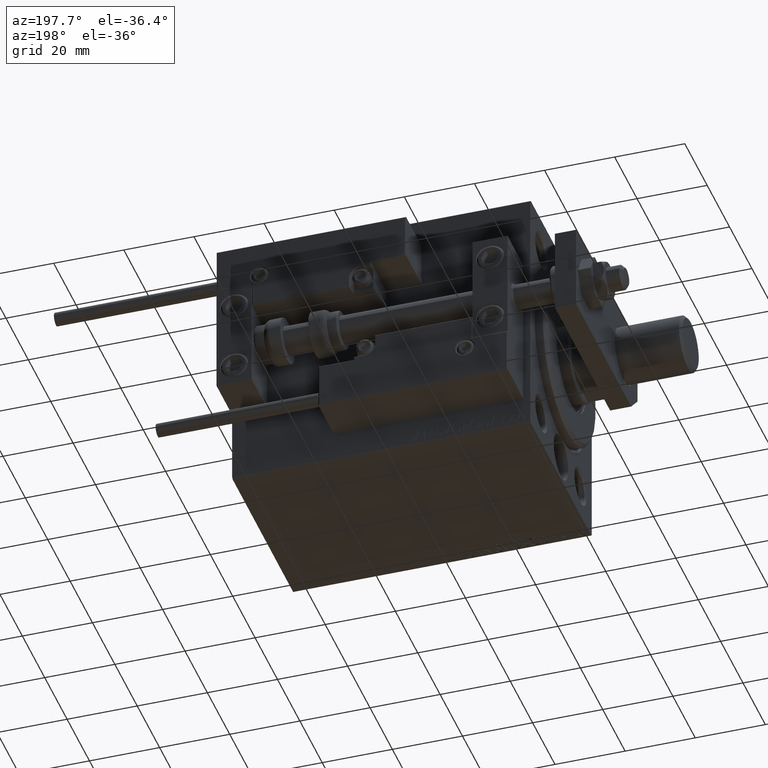
[diagram: clean part render]
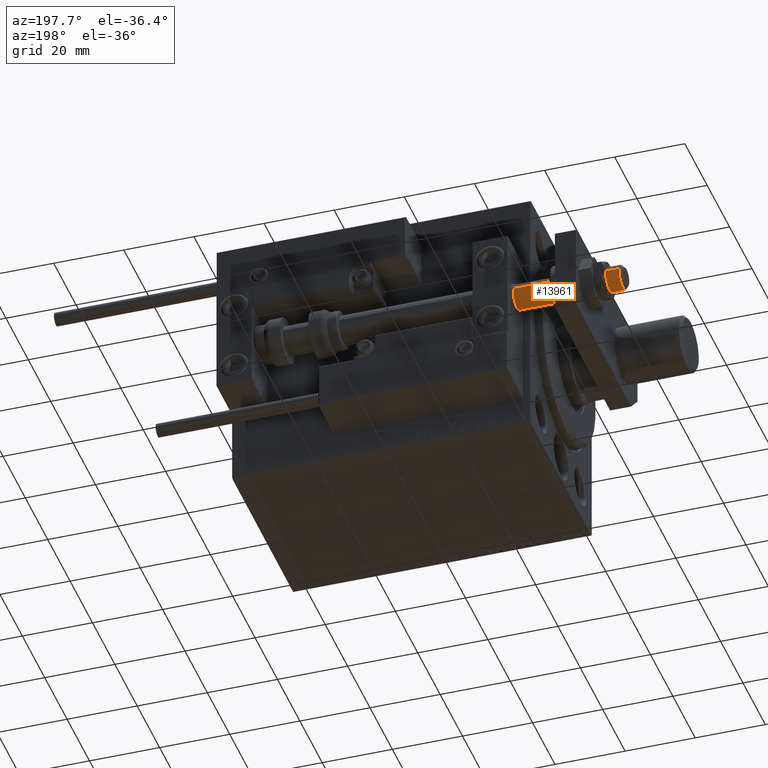
[diagram: same view with one face highlighted and labeled with its STEP entity id]
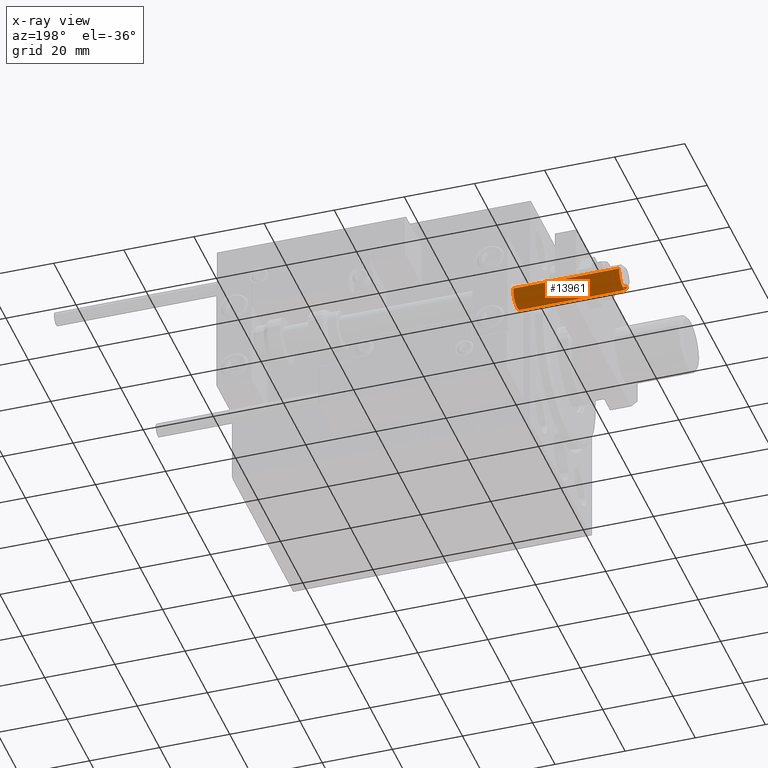
[diagram: x-ray of the same camera — body ghosted, the highlighted face saturated]
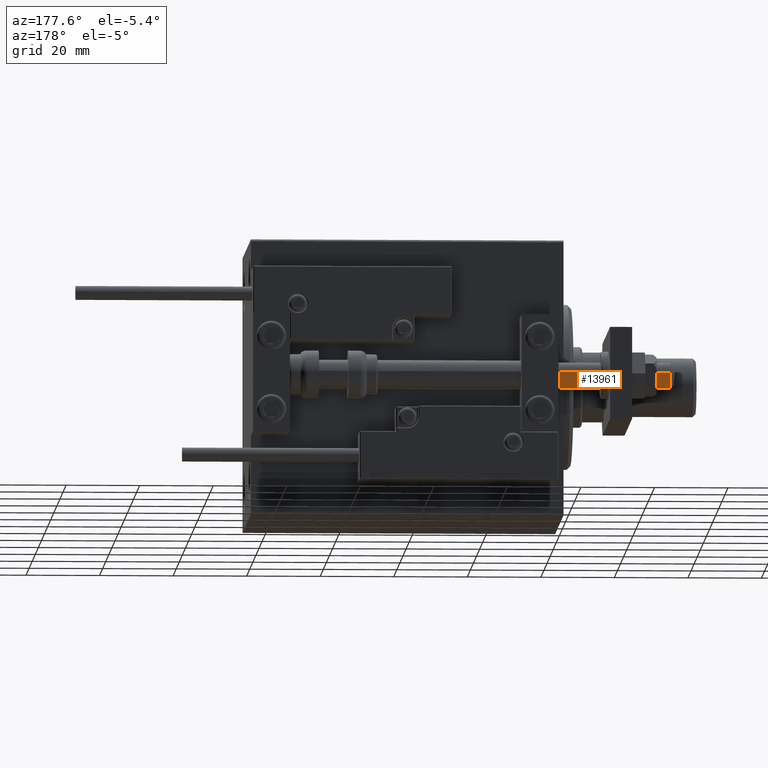
[diagram: same view with one face highlighted and labeled with its STEP entity id]
A machine part, auxiliary view. The second image highlights one B-rep face of the part: STEP entity #13961.
The next image is the same camera in x-ray: the body ghosted, the highlighted face saturated — about 0% of this face is hidden behind the body in this view.
A second angle (auxiliary view) of the same face is appended — the face is thin or edge-on in the first view.
In plain terms, the highlighted cylindrical surface (edge-blend (fillet) strip) has radius 3.5 mm, axis along (1, 0, 0).
Its self-contained STEP definition (entity closure, byte-faithful):
#848 = ORIENTED_EDGE ( 'NONE', *, *, #27734, .T. ) ;
#985 = DIRECTION ( 'NONE',  ( 0.000000000000000000, 0.000000000000000000, 1.000000000000000000 ) ) ;
#1695 = DIRECTION ( 'NONE',  ( -0.000000000000000000, -0.000000000000000000, 1.000000000000000000 ) ) ;
#1806 = VECTOR ( 'NONE', #7679, 1000.000000000000000 ) ;
#3412 = AXIS2_PLACEMENT_3D ( 'NONE', #30583, #27186, #7380 ) ;
#4672 = VERTEX_POINT ( 'NONE', #11551 ) ;
#5415 = CARTESIAN_POINT ( 'NONE',  ( 0.000000000000000000, 0.000000000000000000, -28.69999999999998863 ) ) ;
#5600 = CYLINDRICAL_SURFACE ( 'NONE', #16596, 3.500000000000000000 ) ;
#6714 = CIRCLE ( 'NONE', #3412, 3.500000000000000000 ) ;
#6781 = VERTEX_POINT ( 'NONE', #7955 ) ;
#7380 = DIRECTION ( 'NONE',  ( 1.000000000000000000, 0.000000000000000000, 0.000000000000000000 ) ) ;
#7679 = DIRECTION ( 'NONE',  ( -0.000000000000000000, -0.000000000000000000, 1.000000000000000000 ) ) ;
#7955 = CARTESIAN_POINT ( 'NONE',  ( -3.500000000000000000, 4.286263797015736595E-16, 1.500000000000025535 ) ) ;
#9320 = CIRCLE ( 'NONE', #50063, 3.500000000000000000 ) ;
#9523 = FACE_OUTER_BOUND ( 'NONE', #25011, .T. ) ;
#11551 = CARTESIAN_POINT ( 'NONE',  ( 3.500000000000000000, 0.000000000000000000, 1.500000000000025535 ) ) ;
#13961 = ADVANCED_FACE ( 'NONE', ( #9523 ), #5600, .T. ) ;
#15333 = VECTOR ( 'NONE', #37742, 1000.000000000000000 ) ;
#16441 = VERTEX_POINT ( 'NONE', #24069 ) ;
#16596 = AXIS2_PLACEMENT_3D ( 'NONE', #21503, #1695, #17615 ) ;
#17615 = DIRECTION ( 'NONE',  ( 1.000000000000000000, 0.000000000000000000, 0.000000000000000000 ) ) ;
#19654 = ORIENTED_EDGE ( 'NONE', *, *, #39942, .F. ) ;
#21503 = CARTESIAN_POINT ( 'NONE',  ( 0.000000000000000000, 0.000000000000000000, -29.69999999999999929 ) ) ;
#23449 = EDGE_CURVE ( 'NONE', #16441, #26050, #9320, .T. ) ;
#24069 = CARTESIAN_POINT ( 'NONE',  ( -3.500000000000000000, 4.286263797015736595E-16, -28.69999999999998863 ) ) ;
#25011 = EDGE_LOOP ( 'NONE', ( #19654, #26139, #848, #46138 ) ) ;
#25487 = CARTESIAN_POINT ( 'NONE',  ( 3.500000000000000000, 0.000000000000000000, -28.69999999999998863 ) ) ;
#25504 = LINE ( 'NONE', #45025, #15333 ) ;
#26050 = VERTEX_POINT ( 'NONE', #25487 ) ;
#26139 = ORIENTED_EDGE ( 'NONE', *, *, #23449, .T. ) ;
#27186 = DIRECTION ( 'NONE',  ( 0.000000000000000000, 0.000000000000000000, -1.000000000000000000 ) ) ;
#27734 = EDGE_CURVE ( 'NONE', #26050, #4672, #25504, .T. ) ;
#30583 = CARTESIAN_POINT ( 'NONE',  ( 0.000000000000000000, 0.000000000000000000, 1.500000000000025535 ) ) ;
#33293 = DIRECTION ( 'NONE',  ( -1.000000000000000000, 0.000000000000000000, 0.000000000000000000 ) ) ;
#36073 = LINE ( 'NONE', #40218, #1806 ) ;
#37742 = DIRECTION ( 'NONE',  ( -0.000000000000000000, -0.000000000000000000, 1.000000000000000000 ) ) ;
#38503 = EDGE_CURVE ( 'NONE', #4672, #6781, #6714, .T. ) ;
#39942 = EDGE_CURVE ( 'NONE', #16441, #6781, #36073, .T. ) ;
#40218 = CARTESIAN_POINT ( 'NONE',  ( -3.500000000000000000, 4.286263797015736595E-16, -29.69999999999999929 ) ) ;
#45025 = CARTESIAN_POINT ( 'NONE',  ( 3.500000000000000000, 0.000000000000000000, -29.69999999999999929 ) ) ;
#46138 = ORIENTED_EDGE ( 'NONE', *, *, #38503, .T. ) ;
#50063 = AXIS2_PLACEMENT_3D ( 'NONE', #5415, #985, #33293 ) ;